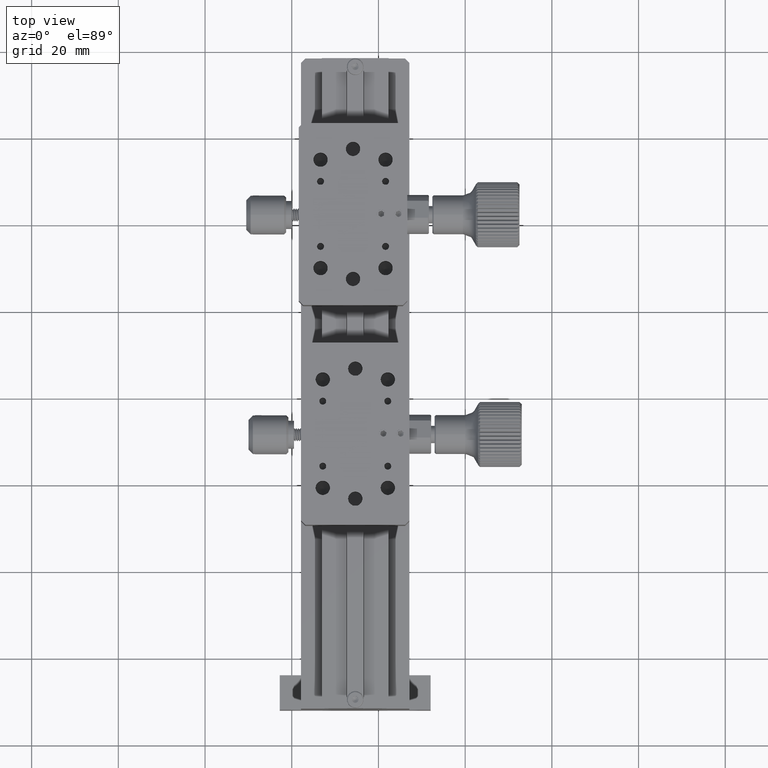
[diagram: clean part render]
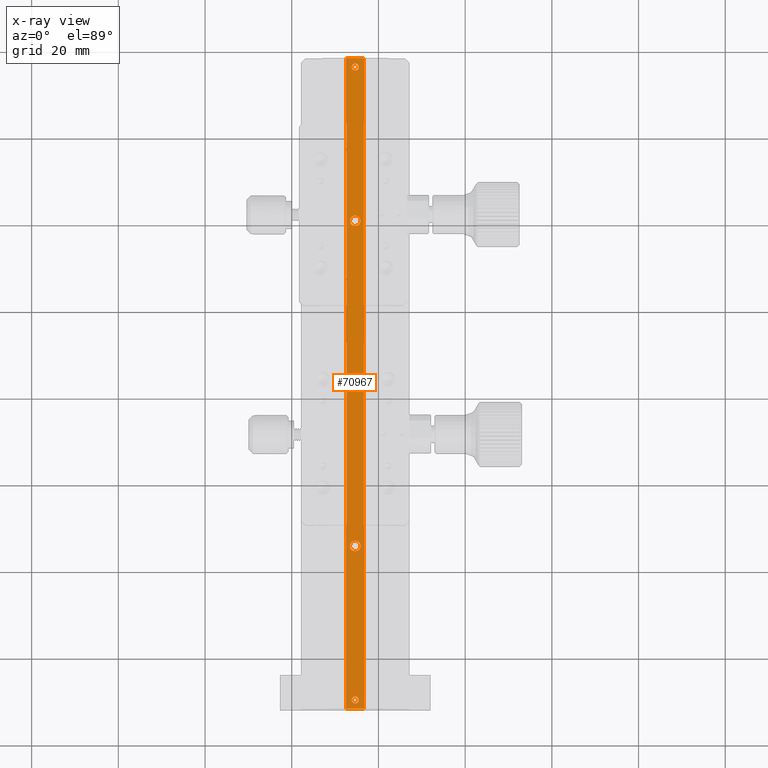
[diagram: x-ray — body ghosted, one internal face saturated and labeled with its STEP entity id]
A machine part, top view, then the same camera in x-ray: the body is ghosted and one INTERNAL B-rep face — a face not visible from any outside direction — is saturated and labeled: STEP entity #70967.
In plain terms, the highlighted planar face has unit normal (-0, 0, -1).
Its self-contained STEP definition (entity closure, byte-faithful):
#887 = DIRECTION ( 'NONE',  ( 0.000000000000000000, 1.000000000000000000, 1.156482317317864980E-14 ) ) ;
#1920 = VERTEX_POINT ( 'NONE', #39225 ) ;
#3967 = EDGE_CURVE ( 'NONE', #90615, #90615, #71464, .T. ) ;
#4769 = DIRECTION ( 'NONE',  ( 0.000000000000000000, 1.000000000000000000, 1.156482317317871607E-14 ) ) ;
#9636 = DIRECTION ( 'NONE',  ( 0.000000000000000000, 1.000000000000000000, 1.156482317317864980E-14 ) ) ;
#12035 = EDGE_CURVE ( 'NONE', #1920, #1920, #27482, .T. ) ;
#12692 = LINE ( 'NONE', #156275, #120948 ) ;
#25982 = CARTESIAN_POINT ( 'NONE',  ( -25.35755063790384867, 3.077595628415266571, 6.645841171383878532 ) ) ;
#26173 = FACE_BOUND ( 'NONE', #141396, .T. ) ;
#26229 = ORIENTED_EDGE ( 'NONE', *, *, #168844, .F. ) ;
#27316 = DIRECTION ( 'NONE',  ( -8.673617379884029556E-16, 1.047444401652940164E-14, -1.000000000000000000 ) ) ;
#27482 = CIRCLE ( 'NONE', #120619, 0.7999999999999951594 ) ;
#27861 = DIRECTION ( 'NONE',  ( 0.000000000000000000, -1.734723475976809934E-14, 1.000000000000000000 ) ) ;
#28479 = ORIENTED_EDGE ( 'NONE', *, *, #40433, .T. ) ;
#32554 = ORIENTED_EDGE ( 'NONE', *, *, #134382, .F. ) ;
#35302 = EDGE_LOOP ( 'NONE', ( #174635 ) ) ;
#35622 = ORIENTED_EDGE ( 'NONE', *, *, #12035, .F. ) ;
#39225 = CARTESIAN_POINT ( 'NONE',  ( -25.35755063790384867, -70.72240437158470172, 6.645841171383046309 ) ) ;
#40433 = EDGE_CURVE ( 'NONE', #68843, #224394, #106301, .T. ) ;
#41031 = EDGE_CURVE ( 'NONE', #87718, #68843, #186788, .T. ) ;
#44823 = FACE_BOUND ( 'NONE', #97575, .T. ) ;
#47871 = VERTEX_POINT ( 'NONE', #82915 ) ;
#49167 = CIRCLE ( 'NONE', #168572, 0.7999999999999951594 ) ;
#55888 = VERTEX_POINT ( 'NONE', #193765 ) ;
#62973 = CARTESIAN_POINT ( 'NONE',  ( -25.35755063790384867, 78.07759562841526702, 6.645841171384573087 ) ) ;
#64029 = CARTESIAN_POINT ( 'NONE',  ( -25.35755063790384867, -69.92240437158470456, 6.645841171383059631 ) ) ;
#65000 = VECTOR ( 'NONE', #184914, 1000.000000000000000 ) ;
#68529 = AXIS2_PLACEMENT_3D ( 'NONE', #147632, #27316, #98526 ) ;
#68843 = VERTEX_POINT ( 'NONE', #93887 ) ;
#70260 = CIRCLE ( 'NONE', #170956, 1.200000000000006617 ) ;
#70967 = ADVANCED_FACE ( 'NONE', ( #200171, #116037, #184994, #76403, #26173, #44823 ), #97377, .F. ) ;
#71464 = CIRCLE ( 'NONE', #201984, 1.199999999999999734 ) ;
#74342 = ORIENTED_EDGE ( 'NONE', *, *, #3967, .F. ) ;
#75017 = ORIENTED_EDGE ( 'NONE', *, *, #160764, .F. ) ;
#75675 = EDGE_LOOP ( 'NONE', ( #75017 ) ) ;
#76403 = FACE_BOUND ( 'NONE', #75675, .T. ) ;
#76676 = DIRECTION ( 'NONE',  ( -0.000000000000000000, -1.156482317317864034E-14, 1.000000000000000000 ) ) ;
#79759 = ORIENTED_EDGE ( 'NONE', *, *, #212654, .F. ) ;
#82245 = EDGE_LOOP ( 'NONE', ( #26229, #209554, #28479, #32554 ) ) ;
#82915 = CARTESIAN_POINT ( 'NONE',  ( -25.35755063790384867, 41.77759562841526275, 6.645841171384267554 ) ) ;
#87488 = VERTEX_POINT ( 'NONE', #122527 ) ;
#87718 = VERTEX_POINT ( 'NONE', #184326 ) ;
#90247 = DIRECTION ( 'NONE',  ( 0.000000000000000000, -1.000000000000000000, -1.734723475976817507E-14 ) ) ;
#90615 = VERTEX_POINT ( 'NONE', #152128 ) ;
#93887 = CARTESIAN_POINT ( 'NONE',  ( -27.35755063790385577, 78.07759562841535228, 6.645841171384586410 ) ) ;
#97187 = DIRECTION ( 'NONE',  ( -0.000000000000000000, -1.156482317317864034E-14, 1.000000000000000000 ) ) ;
#97377 = PLANE ( 'NONE',  #68529 ) ;
#97575 = EDGE_LOOP ( 'NONE', ( #79759 ) ) ;
#98013 = DIRECTION ( 'NONE',  ( -1.000000000000000000, -0.000000000000000000, -0.000000000000000000 ) ) ;
#98526 = DIRECTION ( 'NONE',  ( 0.000000000000000000, 1.000000000000000000, 1.047444401652940164E-14 ) ) ;
#101379 = DIRECTION ( 'NONE',  ( 0.000000000000000000, -1.000000000000000000, -1.734723475976817507E-14 ) ) ;
#106301 = LINE ( 'NONE', #158897, #182192 ) ;
#106542 = EDGE_LOOP ( 'NONE', ( #74342 ) ) ;
#111233 = DIRECTION ( 'NONE',  ( 0.000000000000000000, -1.734723475976814983E-14, 1.000000000000000000 ) ) ;
#116037 = FACE_BOUND ( 'NONE', #35302, .T. ) ;
#116538 = CIRCLE ( 'NONE', #120191, 1.200000000000006617 ) ;
#120191 = AXIS2_PLACEMENT_3D ( 'NONE', #25982, #97187, #9636 ) ;
#120619 = AXIS2_PLACEMENT_3D ( 'NONE', #64029, #27861, #101379 ) ;
#120948 = VECTOR ( 'NONE', #226346, 1000.000000000000000 ) ;
#122527 = CARTESIAN_POINT ( 'NONE',  ( -25.35755063790384867, 75.27759562841538354, 6.645841171384544666 ) ) ;
#127334 = DIRECTION ( 'NONE',  ( -0.000000000000000000, -1.156482317317864034E-14, 1.000000000000000000 ) ) ;
#128749 = CARTESIAN_POINT ( 'NONE',  ( -23.35755063790384511, -71.92240437158474720, 6.645841171383059631 ) ) ;
#134382 = EDGE_CURVE ( 'NONE', #205237, #224394, #12692, .T. ) ;
#141396 = EDGE_LOOP ( 'NONE', ( #35622 ) ) ;
#142828 = CARTESIAN_POINT ( 'NONE',  ( -25.35755063790384867, 76.07759562841536649, 6.645841171384558876 ) ) ;
#147632 = CARTESIAN_POINT ( 'NONE',  ( -23.35755063790384511, 78.07759562841538070, 6.645841171384573087 ) ) ;
#152128 = CARTESIAN_POINT ( 'NONE',  ( -25.35755063790384867, -33.22240437158473014, 6.645841171383476187 ) ) ;
#156275 = CARTESIAN_POINT ( 'NONE',  ( -25.35755063790384867, -71.92240437158473298, 6.645841171383073842 ) ) ;
#158897 = CARTESIAN_POINT ( 'NONE',  ( -27.35755063790385577, 78.07759562841538070, 6.645841171384669899 ) ) ;
#160764 = EDGE_CURVE ( 'NONE', #47871, #47871, #70260, .T. ) ;
#164699 = CARTESIAN_POINT ( 'NONE',  ( -25.35755063790384867, -34.42240437158473298, 6.645841171383462864 ) ) ;
#168572 = AXIS2_PLACEMENT_3D ( 'NONE', #142828, #111233, #90247 ) ;
#168844 = EDGE_CURVE ( 'NONE', #87718, #205237, #182603, .T. ) ;
#170956 = AXIS2_PLACEMENT_3D ( 'NONE', #225458, #76676, #887 ) ;
#174635 = ORIENTED_EDGE ( 'NONE', *, *, #213210, .F. ) ;
#177555 = DIRECTION ( 'NONE',  ( -0.000000000000000000, -1.000000000000000000, 0.000000000000000000 ) ) ;
#182192 = VECTOR ( 'NONE', #177555, 1000.000000000000000 ) ;
#182603 = LINE ( 'NONE', #187221, #65000 ) ;
#184326 = CARTESIAN_POINT ( 'NONE',  ( -23.35755063790384511, 78.07759562841535228, 6.645841171383823465 ) ) ;
#184914 = DIRECTION ( 'NONE',  ( -0.000000000000000000, -1.000000000000000000, -1.047444401652940164E-14 ) ) ;
#184994 = FACE_BOUND ( 'NONE', #106542, .T. ) ;
#186788 = LINE ( 'NONE', #62973, #223206 ) ;
#187221 = CARTESIAN_POINT ( 'NONE',  ( -23.35755063790384511, 78.07759562841538070, 6.645841171384573087 ) ) ;
#193765 = CARTESIAN_POINT ( 'NONE',  ( -25.35755063790384867, 4.277595628415273410, 6.645841171383892743 ) ) ;
#200171 = FACE_OUTER_BOUND ( 'NONE', #82245, .T. ) ;
#201915 = CARTESIAN_POINT ( 'NONE',  ( -27.35755063790385577, -71.92240437158473298, 6.645841171383434443 ) ) ;
#201984 = AXIS2_PLACEMENT_3D ( 'NONE', #164699, #127334, #4769 ) ;
#205237 = VERTEX_POINT ( 'NONE', #128749 ) ;
#209554 = ORIENTED_EDGE ( 'NONE', *, *, #41031, .T. ) ;
#212654 = EDGE_CURVE ( 'NONE', #87488, #87488, #49167, .T. ) ;
#213210 = EDGE_CURVE ( 'NONE', #55888, #55888, #116538, .T. ) ;
#223206 = VECTOR ( 'NONE', #98013, 1000.000000000000000 ) ;
#224394 = VERTEX_POINT ( 'NONE', #201915 ) ;
#225458 = CARTESIAN_POINT ( 'NONE',  ( -25.35755063790384867, 40.57759562841525991, 6.645841171384253343 ) ) ;
#226346 = DIRECTION ( 'NONE',  ( -1.000000000000000000, -0.000000000000000000, -0.000000000000000000 ) ) ;